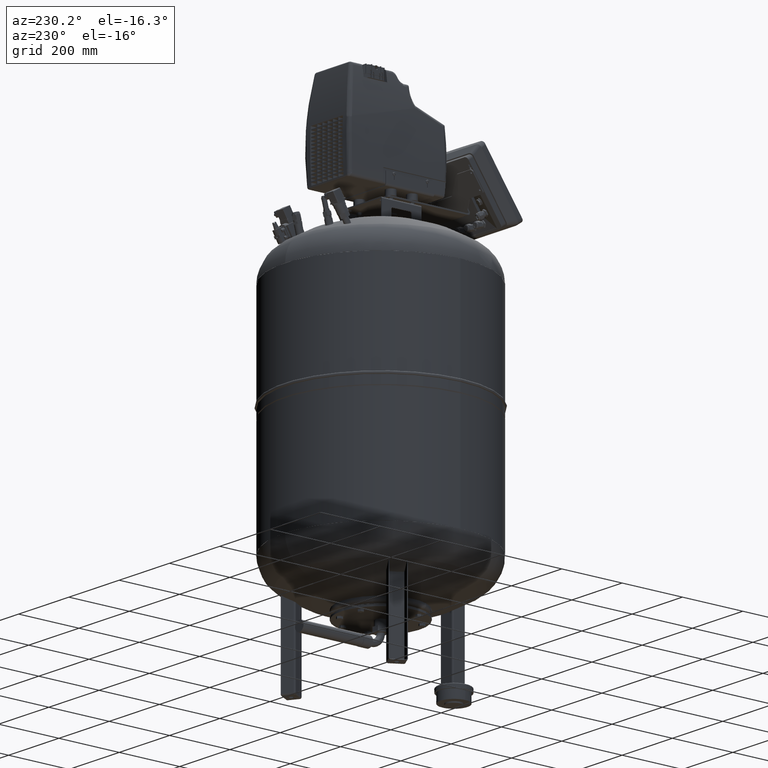
[diagram: clean part render]
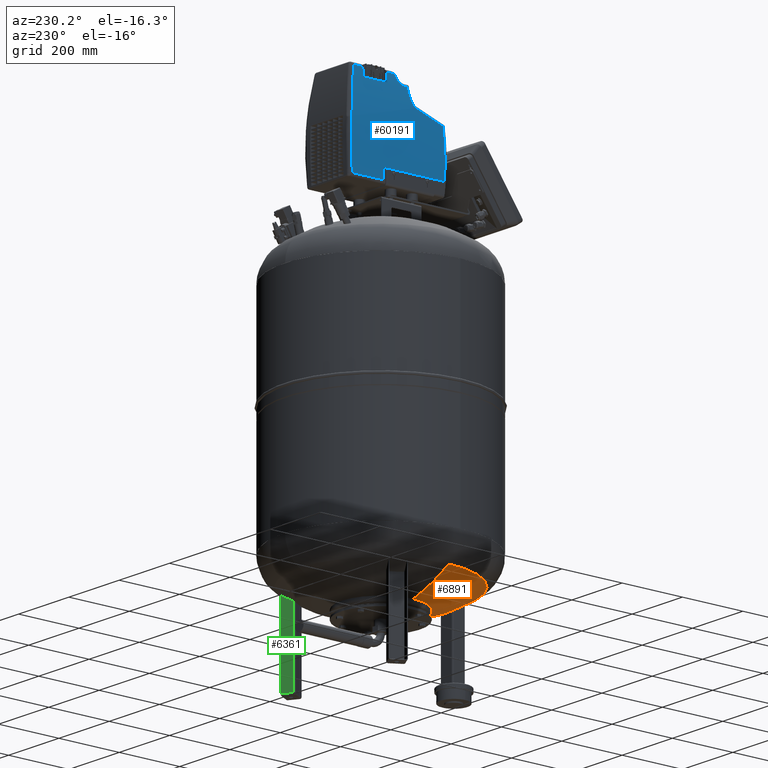
[diagram: same view with three faces highlighted in distinct colors, each labeled with its STEP entity id]
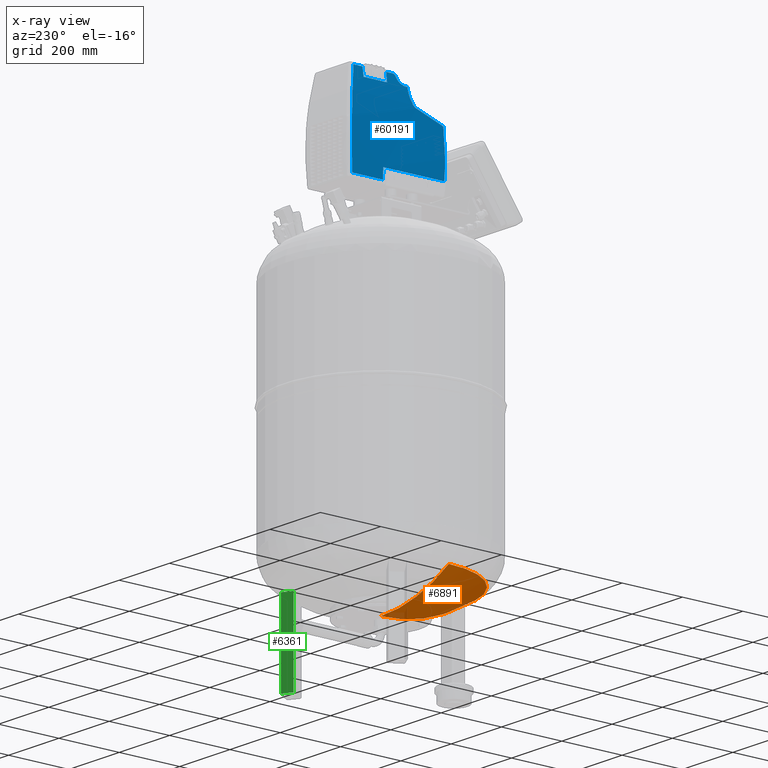
[diagram: x-ray of the same camera — body ghosted, the three highlighted faces saturated]
A machine part, auxiliary view with three faces highlighted in distinct colors.
The next image is the same camera in x-ray (body ghosted, the three faces saturated) — at least one of them is partly hidden behind the body in this view.
Their STEP definitions:

[orange] entity #6891 — the highlighted spherical surface has radius 509 mm.
#6814=AXIS2_PLACEMENT_3D('Circle Axis2P3D',#6812,#6813,$) ;
#6833=AXIS2_PLACEMENT_3D('Circle Axis2P3D',#6831,#6832,$) ;
#6872=AXIS2_PLACEMENT_3D('Circle Axis2P3D',#6870,#6871,$) ;
#6884=AXIS2_PLACEMENT_3D('Sphere Axis2P3D',#6881,#6882,#6883) ;
#6769=CARTESIAN_POINT('Vertex',(-5.8221616869E-014,-270.63902439,268.913560319)) ;
#6809=CARTESIAN_POINT('Vertex',(-270.63902439,2.75778831515E-013,268.913560319)) ;
#6812=CARTESIAN_POINT('Axis2P3D Location',(8.06582611976E-015,-1.43124917185E-014,268.913560319)) ;
#6831=CARTESIAN_POINT('Axis2P3D Location',(-1.005746E-013,-9.350178E-014,700.)) ;
#6835=CARTESIAN_POINT('Vertex',(-1.87211571315E-014,-9.350178E-014,191.)) ;
#6870=CARTESIAN_POINT('Axis2P3D Location',(-1.005746E-013,-9.350178E-014,700.)) ;
#6881=CARTESIAN_POINT('Axis2P3D Location',(-1.005746E-013,-9.350178E-014,700.)) ;
#6813=DIRECTION('Axis2P3D Direction',(-9.619823E-017,0.,1.)) ;
#6832=DIRECTION('Axis2P3D Direction',(-1.,1.83697019872E-016,0.)) ;
#6871=DIRECTION('Axis2P3D Direction',(1.22464679915E-016,1.,-0.)) ;
#6882=DIRECTION('Axis2P3D Direction',(0.,0.,1.)) ;
#6883=DIRECTION('Axis2P3D XDirection',(-1.,1.22464679915E-016,0.)) ;
#6887=ORIENTED_EDGE('',*,*,#6837,.T.) ;
#6888=ORIENTED_EDGE('',*,*,#6816,.F.) ;
#6889=ORIENTED_EDGE('',*,*,#6874,.T.) ;
#6891=ADVANCED_FACE('312',(#6890),#6885,.T.) ;
#6815=CIRCLE('generated circle',#6814,270.63902439) ;
#6834=CIRCLE('generated circle',#6833,509.) ;
#6873=CIRCLE('generated circle',#6872,509.) ;
#6816=EDGE_CURVE('',#6810,#6770,#6815,.T.) ;
#6837=EDGE_CURVE('',#6836,#6770,#6834,.T.) ;
#6874=EDGE_CURVE('',#6810,#6836,#6873,.F.) ;
#6886=EDGE_LOOP('',(#6887,#6888,#6889)) ;
#6890=FACE_OUTER_BOUND('',#6886,.T.) ;
#6885=SPHERICAL_SURFACE('',#6884,509.) ;
#6770=VERTEX_POINT('',#6769) ;
#6810=VERTEX_POINT('',#6809) ;
#6836=VERTEX_POINT('',#6835) ;

[blue] entity #60191 — the highlighted cylindrical surface (partial cylindrical patch) has radius 1323.98 mm, axis along (-0, -1, 0).
#60025=AXIS2_PLACEMENT_3D('Cylinder Axis2P3D',#60022,#60023,#60024) ;
#60029=AXIS2_PLACEMENT_3D('Circle Axis2P3D',#60027,#60028,$) ;
#60106=AXIS2_PLACEMENT_3D('Circle Axis2P3D',#60104,#60105,$) ;
#60134=AXIS2_PLACEMENT_3D('Circle Axis2P3D',#60132,#60133,$) ;
#52963=CARTESIAN_POINT('Vertex',(-87.3076272385,167.562096216,1326.44668033)) ;
#53012=CARTESIAN_POINT('Vertex',(-86.6911594313,166.839786112,1317.29356935)) ;
#53016=CARTESIAN_POINT('Control Point',(-86.6911890346,166.840084881,1317.29354245)) ;
#53017=CARTESIAN_POINT('Control Point',(-86.9071158889,167.093227253,1320.34206636)) ;
#53018=CARTESIAN_POINT('Control Point',(-87.1126187467,167.333988082,1323.39310722)) ;
#53019=CARTESIAN_POINT('Control Point',(-87.3076655401,167.562339536,1326.44665968)) ;
#53077=CARTESIAN_POINT('Vertex',(-88.9059773766,169.329224737,1464.65086395)) ;
#53081=CARTESIAN_POINT('Control Point',(-87.3076655401,167.562339536,1326.44665968)) ;
#53082=CARTESIAN_POINT('Control Point',(-89.0613200686,169.615434363,1353.90097471)) ;
#53083=CARTESIAN_POINT('Control Point',(-90.1165547567,170.83495077,1386.23843005)) ;
#53084=CARTESIAN_POINT('Control Point',(-89.9860810098,170.650862774,1418.53255406)) ;
#53085=CARTESIAN_POINT('Control Point',(-89.9419752957,170.59432104,1423.23804874)) ;
#53086=CARTESIAN_POINT('Vertex',(-89.9419391292,170.594282238,1423.23804793)) ;
#53090=CARTESIAN_POINT('Control Point',(-89.9419752957,170.59432104,1423.23804874)) ;
#53091=CARTESIAN_POINT('Control Point',(-89.8123777147,170.428182205,1437.06439166)) ;
#53092=CARTESIAN_POINT('Control Point',(-89.4661772663,170.005542452,1450.87565199)) ;
#53093=CARTESIAN_POINT('Control Point',(-88.9060228084,169.329263426,1464.6508677)) ;
#53148=CARTESIAN_POINT('Vertex',(-75.4672556537,153.241497499,1606.46839054)) ;
#53152=CARTESIAN_POINT('Control Point',(-88.9060228084,169.329263426,1464.6508677)) ;
#53153=CARTESIAN_POINT('Control Point',(-88.8232989608,169.229390253,1466.68519739)) ;
#53154=CARTESIAN_POINT('Control Point',(-88.7358614937,169.12393097,1468.71944374)) ;
#53155=CARTESIAN_POINT('Control Point',(-88.6437187438,169.012893137,1470.75353245)) ;
#53156=CARTESIAN_POINT('Vertex',(-88.6436327259,169.012806686,1470.75352383)) ;
#53160=CARTESIAN_POINT('Control Point',(-88.6437187438,169.012893137,1470.75353245)) ;
#53161=CARTESIAN_POINT('Control Point',(-87.6487032733,167.813836654,1492.71890402)) ;
#53162=CARTESIAN_POINT('Control Point',(-84.444297555,163.974501095,1538.27635721)) ;
#53163=CARTESIAN_POINT('Control Point',(-78.9208834126,157.373153528,1583.35153129)) ;
#53164=CARTESIAN_POINT('Control Point',(-75.4672530176,153.241606009,1606.46840954)) ;
#53205=CARTESIAN_POINT('Control Point',(-75.4672530176,153.241606009,1606.46840954)) ;
#53206=CARTESIAN_POINT('Control Point',(-75.316183945,153.060883413,1607.47959052)) ;
#53207=CARTESIAN_POINT('Control Point',(-75.1639928693,152.87881243,1608.49026462)) ;
#53208=CARTESIAN_POINT('Control Point',(-75.0106825707,152.695395622,1609.50042948)) ;
#53209=CARTESIAN_POINT('Vertex',(-75.0106742755,152.695384031,1609.50048874)) ;
#54957=CARTESIAN_POINT('Vertex',(-75.0444309469,21.294597543,1609.27793703)) ;
#54975=CARTESIAN_POINT('Vertex',(-75.0106742755,23.3788220938,1609.50048874)) ;
#54979=CARTESIAN_POINT('Control Point',(-75.0106742755,23.3788220946,1609.50048874)) ;
#54980=CARTESIAN_POINT('Control Point',(-75.0106823751,22.6799499283,1609.50043442)) ;
#54981=CARTESIAN_POINT('Control Point',(-75.0219886121,21.9778088679,1609.42598105)) ;
#54982=CARTESIAN_POINT('Control Point',(-75.044251522,21.29433767,1609.27911974)) ;
#55043=CARTESIAN_POINT('Control Point',(-75.044251522,21.29433767,1609.27911974)) ;
#55044=CARTESIAN_POINT('Control Point',(-75.0671547127,20.5912098531,1609.1280347)) ;
#55045=CARTESIAN_POINT('Control Point',(-75.1016040874,19.9047879948,1608.90066577)) ;
#55046=CARTESIAN_POINT('Control Point',(-75.1468631143,19.2489450234,1608.60105399)) ;
#55047=CARTESIAN_POINT('Vertex',(-75.1468614273,19.2489408236,1608.60106293)) ;
#55051=CARTESIAN_POINT('Control Point',(-75.146863116,19.2489449982,1608.60105398)) ;
#55052=CARTESIAN_POINT('Control Point',(-75.1518826794,19.1762071255,1608.5678248)) ;
#55053=CARTESIAN_POINT('Control Point',(-75.1892917227,18.6508370805,1608.32011834)) ;
#55054=CARTESIAN_POINT('Control Point',(-75.2527837963,17.9287655862,1607.89899733)) ;
#55055=CARTESIAN_POINT('Control Point',(-75.3570026275,16.9995638127,1607.20528146)) ;
#55056=CARTESIAN_POINT('Control Point',(-75.4229187638,16.5171978025,1606.7651441)) ;
#55057=CARTESIAN_POINT('Control Point',(-75.4656326546,16.2389565734,1606.47925314)) ;
#55058=CARTESIAN_POINT('Vertex',(-75.4656346261,16.2389697695,1606.47924058)) ;
#55116=CARTESIAN_POINT('Control Point',(-75.4656326546,16.2389565734,1606.47925314)) ;
#55117=CARTESIAN_POINT('Control Point',(-75.4709687977,16.2041965693,1606.44353748)) ;
#55118=CARTESIAN_POINT('Control Point',(-75.4763449167,16.1696868456,1606.40754425)) ;
#55119=CARTESIAN_POINT('Control Point',(-75.4817601872,16.1354323112,1606.37127853)) ;
#55120=CARTESIAN_POINT('Vertex',(-75.4817576078,16.1354123019,1606.37129704)) ;
#55124=CARTESIAN_POINT('Control Point',(-75.4817601985,16.1354322394,1606.37127845)) ;
#55125=CARTESIAN_POINT('Control Point',(-75.5457005674,15.7309745976,1605.94307389)) ;
#55126=CARTESIAN_POINT('Control Point',(-75.6986088105,14.9182090625,1604.91589467)) ;
#55127=CARTESIAN_POINT('Control Point',(-75.8714270679,14.3173882002,1603.74483328)) ;
#55128=CARTESIAN_POINT('Control Point',(-75.9681420673,14.062405185,1603.08582143)) ;
#55129=CARTESIAN_POINT('Vertex',(-75.9681420673,14.0624051858,1603.08582143)) ;
#55187=CARTESIAN_POINT('Vertex',(-76.8837424774,10.8108161555,1596.74012063)) ;
#55191=CARTESIAN_POINT('Control Point',(-75.9681420673,14.062405185,1603.08582143)) ;
#55192=CARTESIAN_POINT('Control Point',(-76.2932499527,13.2049041147,1600.87057556)) ;
#55193=CARTESIAN_POINT('Control Point',(-76.6005884204,12.1095802017,1598.73674547)) ;
#55194=CARTESIAN_POINT('Control Point',(-76.8837421427,10.8108221145,1596.74011671)) ;
#55233=CARTESIAN_POINT('Control Point',(-76.8837421427,10.8108221145,1596.74011671)) ;
#55234=CARTESIAN_POINT('Control Point',(-77.1385833257,9.64192684248,1594.94313084)) ;
#55235=CARTESIAN_POINT('Control Point',(-77.3746650101,8.30493706807,1593.25151563)) ;
#55236=CARTESIAN_POINT('Control Point',(-77.588262133,6.8217273673,1591.70264933)) ;
#55237=CARTESIAN_POINT('Vertex',(-77.5882674575,6.82172730641,1591.70265012)) ;
#55241=CARTESIAN_POINT('Control Point',(-77.588262133,6.8217273673,1591.70264933)) ;
#55242=CARTESIAN_POINT('Control Point',(-77.6187613907,6.60981980241,1591.48148871)) ;
#55243=CARTESIAN_POINT('Control Point',(-77.6488101718,6.3949552172,1591.26318129)) ;
#55244=CARTESIAN_POINT('Control Point',(-77.6783983485,6.17721286599,1591.0478303)) ;
#55245=CARTESIAN_POINT('Vertex',(-77.6784070266,6.17726570554,1591.04777806)) ;
#55249=CARTESIAN_POINT('Control Point',(-77.6783983485,6.17721286603,1591.0478303)) ;
#55250=CARTESIAN_POINT('Control Point',(-77.7046950454,5.98369284387,1590.85643561)) ;
#55251=CARTESIAN_POINT('Control Point',(-77.730627916,5.78789970638,1590.66737618)) ;
#55252=CARTESIAN_POINT('Control Point',(-77.7561898505,5.58988909162,1590.48072447)) ;
#55253=CARTESIAN_POINT('Vertex',(-77.7561594523,5.58967697799,1590.48094566)) ;
#55319=CARTESIAN_POINT('Control Point',(-77.7561594697,5.58967770549,1590.48094628)) ;
#55320=CARTESIAN_POINT('Control Point',(-77.8740041494,4.67549508491,1589.6204524)) ;
#55321=CARTESIAN_POINT('Control Point',(-77.9857108574,3.71728095989,1588.79949897)) ;
#55322=CARTESIAN_POINT('Control Point',(-78.0787067155,2.82328308376,1588.11154545)) ;
#55323=CARTESIAN_POINT('Control Point',(-78.2327449054,1.24032982113,1586.96809696)) ;
#55324=CARTESIAN_POINT('Control Point',(-78.3745407647,-0.475302229711,1585.90719065)) ;
#55325=CARTESIAN_POINT('Control Point',(-78.4377947104,-1.29462539923,1585.43245093)) ;
#55326=CARTESIAN_POINT('Control Point',(-78.5158153785,-2.41274208877,1584.84458256)) ;
#55327=CARTESIAN_POINT('Control Point',(-78.5862891366,-3.55279331935,1584.31158226)) ;
#55328=CARTESIAN_POINT('Control Point',(-78.5997504646,-3.77604010948,1584.20969548)) ;
#55329=CARTESIAN_POINT('Control Point',(-78.6129202472,-4.00005394172,1584.10994316)) ;
#55330=CARTESIAN_POINT('Control Point',(-78.6257963906,-4.22480040042,1584.01234797)) ;
#55331=CARTESIAN_POINT('Vertex',(-78.6257957139,-4.22480040535,1584.01234789)) ;
#55387=CARTESIAN_POINT('Control Point',(-78.6257963906,-4.22480040042,1584.01234797)) ;
#55388=CARTESIAN_POINT('Control Point',(-78.6291315459,-4.28301381937,1583.98706904)) ;
#55389=CARTESIAN_POINT('Control Point',(-78.6324436119,-4.34129576525,1583.96195963)) ;
#55390=CARTESIAN_POINT('Control Point',(-78.6357324883,-4.39964515909,1583.93702071)) ;
#55391=CARTESIAN_POINT('Vertex',(-78.635731531,-4.39964516032,1583.93702058)) ;
#55395=CARTESIAN_POINT('Control Point',(-78.6357324883,-4.39964515909,1583.93702071)) ;
#55396=CARTESIAN_POINT('Control Point',(-78.6412657515,-4.49791837751,1583.89506302)) ;
#55397=CARTESIAN_POINT('Control Point',(-78.646737029,-4.59641287984,1583.85356019)) ;
#55398=CARTESIAN_POINT('Control Point',(-78.6521461201,-4.69512376609,1583.81251459)) ;
#55399=CARTESIAN_POINT('Vertex',(-78.6521539078,-4.69509355724,1583.81244297)) ;
#55403=CARTESIAN_POINT('Control Point',(-78.6521461201,-4.69512376609,1583.81251459)) ;
#55404=CARTESIAN_POINT('Control Point',(-78.7539306728,-6.55259728458,1583.0401468)) ;
#55405=CARTESIAN_POINT('Control Point',(-78.9296804409,-10.8140772364,1581.69508314)) ;
#55406=CARTESIAN_POINT('Control Point',(-78.9920362559,-15.2890245446,1581.21331666)) ;
#55407=CARTESIAN_POINT('Control Point',(-78.9919677211,-17.703577953,1581.2138705)) ;
#55408=CARTESIAN_POINT('Vertex',(-78.9919677211,-17.7035779525,1581.2138705)) ;
#55731=CARTESIAN_POINT('Vertex',(-87.2950691375,-134.575088929,1495.42746206)) ;
#55765=CARTESIAN_POINT('Vertex',(-84.8581533226,-47.366049055,1527.41056861)) ;
#55769=CARTESIAN_POINT('Control Point',(-84.8581533226,-47.3660490547,1527.41056861)) ;
#55770=CARTESIAN_POINT('Control Point',(-85.799570416,-76.4074792163,1516.75990816)) ;
#55771=CARTESIAN_POINT('Control Point',(-86.6119426256,-105.480009848,1506.09784192)) ;
#55772=CARTESIAN_POINT('Control Point',(-87.2950639291,-134.575103324,1495.42750097)) ;
#55835=CARTESIAN_POINT('Vertex',(-89.7231436386,-138.040816136,1383.76439616)) ;
#55875=CARTESIAN_POINT('Control Point',(-87.2950401,-134.575125012,1495.42746313)) ;
#55876=CARTESIAN_POINT('Control Point',(-88.2228196059,-135.751764207,1480.93429663)) ;
#55877=CARTESIAN_POINT('Control Point',(-89.3281814431,-137.184064543,1457.68350646)) ;
#55878=CARTESIAN_POINT('Control Point',(-89.9364475172,-138.056382938,1428.83148848)) ;
#55879=CARTESIAN_POINT('Control Point',(-90.0064751009,-138.214474795,1414.54963866)) ;
#55880=CARTESIAN_POINT('Control Point',(-89.998747293,-138.234550935,1408.99553636)) ;
#55881=CARTESIAN_POINT('Vertex',(-89.9987167813,-138.234511614,1408.99553626)) ;
#55885=CARTESIAN_POINT('Control Point',(-89.998747293,-138.234550935,1408.99553636)) ;
#55886=CARTESIAN_POINT('Control Point',(-89.9870457994,-138.264950347,1400.5854808)) ;
#55887=CARTESIAN_POINT('Control Point',(-89.8951843711,-138.200415046,1392.17555796)) ;
#55888=CARTESIAN_POINT('Control Point',(-89.7231450928,-138.040960085,1383.7643934)) ;
#55933=CARTESIAN_POINT('Control Point',(-89.7231450928,-138.040960085,1383.7643934)) ;
#55934=CARTESIAN_POINT('Control Point',(-89.4928377836,-137.82749928,1372.50444919)) ;
#55935=CARTESIAN_POINT('Control Point',(-89.1184592134,-137.443482091,1361.24521962)) ;
#55936=CARTESIAN_POINT('Control Point',(-88.6011825026,-136.890058663,1350.00002534)) ;
#55937=CARTESIAN_POINT('Vertex',(-88.6014415449,-136.890331376,1350.)) ;
#60022=CARTESIAN_POINT('Axis2P3D Location',(1233.97935138,16.,1410.83887792)) ;
#60027=CARTESIAN_POINT('Axis2P3D Location',(1233.97935138,64.9949999992,1410.83887792)) ;
#60031=CARTESIAN_POINT('Vertex',(-86.6911511569,64.9949999992,1317.29345254)) ;
#60033=CARTESIAN_POINT('Vertex',(-88.6014415449,64.995,1350.)) ;
#60036=CARTESIAN_POINT('Line Origine',(-88.6014415452,16.,1350.)) ;
#60042=CARTESIAN_POINT('Control Point',(-84.2019426608,-37.9486657456,1534.61043734)) ;
#60043=CARTESIAN_POINT('Control Point',(-84.3857842,-39.3409998138,1532.65250387)) ;
#60044=CARTESIAN_POINT('Control Point',(-84.5468810328,-41.0302684663,1530.89766568)) ;
#60045=CARTESIAN_POINT('Control Point',(-84.6803878136,-42.9611911049,1529.41427138)) ;
#60046=CARTESIAN_POINT('Control Point',(-84.7850148969,-45.109702824,1528.2380225)) ;
#60047=CARTESIAN_POINT('Control Point',(-84.8581533226,-47.366049055,1527.41056861)) ;
#60048=CARTESIAN_POINT('Vertex',(-84.2019426608,-37.9486657456,1534.61043734)) ;
#60052=CARTESIAN_POINT('Control Point',(-82.839798786,-30.0724686347,1548.34759995)) ;
#60053=CARTESIAN_POINT('Control Point',(-83.343681435,-32.2458394746,1543.52228915)) ;
#60054=CARTESIAN_POINT('Control Point',(-83.7984817618,-34.8932761467,1538.90734215)) ;
#60055=CARTESIAN_POINT('Control Point',(-84.2019426608,-37.9486657456,1534.61043734)) ;
#60056=CARTESIAN_POINT('Vertex',(-82.839798786,-30.0724686347,1548.34759995)) ;
#60060=CARTESIAN_POINT('Control Point',(-82.5980730776,-29.0804766526,1550.64305628)) ;
#60061=CARTESIAN_POINT('Control Point',(-82.6798093231,-29.3992442315,1549.87332181)) ;
#60062=CARTESIAN_POINT('Control Point',(-82.7603866472,-29.7299443839,1549.10807117)) ;
#60063=CARTESIAN_POINT('Control Point',(-82.839798786,-30.0724686347,1548.34759995)) ;
#60064=CARTESIAN_POINT('Vertex',(-82.5980730776,-29.0804766526,1550.64305628)) ;
#60068=CARTESIAN_POINT('Control Point',(-80.0712836986,-23.3899473399,1572.67908099)) ;
#60069=CARTESIAN_POINT('Control Point',(-80.7700405902,-24.0341591917,1567.00557144)) ;
#60070=CARTESIAN_POINT('Control Point',(-81.4270136463,-25.2028647256,1561.40198971)) ;
#60071=CARTESIAN_POINT('Control Point',(-82.0368250287,-26.8916352089,1555.92849567)) ;
#60072=CARTESIAN_POINT('Control Point',(-82.5980730776,-29.0804766526,1550.64305628)) ;
#60073=CARTESIAN_POINT('Vertex',(-80.0712836986,-23.3899473399,1572.67908099)) ;
#60077=CARTESIAN_POINT('Control Point',(-79.5158611725,-23.0086732994,1577.12672919)) ;
#60078=CARTESIAN_POINT('Control Point',(-79.7038943596,-23.0949768068,1575.64146921)) ;
#60079=CARTESIAN_POINT('Control Point',(-79.8891205298,-23.2220038481,1574.15814257)) ;
#60080=CARTESIAN_POINT('Control Point',(-80.0712836986,-23.3899473399,1572.67908099)) ;
#60081=CARTESIAN_POINT('Vertex',(-79.5158611725,-23.0086732994,1577.12672919)) ;
#60085=CARTESIAN_POINT('Control Point',(-78.9940292867,-22.873994302,1581.19798258)) ;
#60086=CARTESIAN_POINT('Control Point',(-79.1701223073,-22.8850268673,1579.84081738)) ;
#60087=CARTESIAN_POINT('Control Point',(-79.3441345052,-22.9298541616,1578.4831852)) ;
#60088=CARTESIAN_POINT('Control Point',(-79.5158611725,-23.0086732994,1577.12672919)) ;
#60089=CARTESIAN_POINT('Vertex',(-78.9940292867,-22.873994302,1581.19798258)) ;
#60092=CARTESIAN_POINT('Line Origine',(-78.9919677211,16.,1581.2138705)) ;
#60097=CARTESIAN_POINT('Line Origine',(-75.0106742755,16.,1609.50048874)) ;
#60101=CARTESIAN_POINT('Vertex',(-75.0106742755,44.6953840312,1609.50048874)) ;
#60104=CARTESIAN_POINT('Axis2P3D Location',(1233.97935138,44.6953840312,1410.83887792)) ;
#60108=CARTESIAN_POINT('Vertex',(-79.0197024703,44.6953840312,1581.)) ;
#60111=CARTESIAN_POINT('Line Origine',(-79.0197024703,16.,1581.)) ;
#60115=CARTESIAN_POINT('Vertex',(-79.0197024703,53.0447463207,1581.)) ;
#60118=CARTESIAN_POINT('Line Origine',(-79.0197024703,16.,1581.)) ;
#60122=CARTESIAN_POINT('Vertex',(-79.0197024703,113.63083775,1581.)) ;
#60125=CARTESIAN_POINT('Line Origine',(-79.0197024703,16.,1581.)) ;
#60129=CARTESIAN_POINT('Vertex',(-79.0197024703,122.695384031,1581.)) ;
#60132=CARTESIAN_POINT('Axis2P3D Location',(1233.97935138,122.695384031,1410.83887792)) ;
#60136=CARTESIAN_POINT('Vertex',(-75.0106742755,122.695384031,1609.50048874)) ;
#60139=CARTESIAN_POINT('Line Origine',(-75.0106742755,16.,1609.50048874)) ;
#60144=CARTESIAN_POINT('Line Origine',(-86.6911511569,16.,1317.29345254)) ;
#60023=DIRECTION('Axis2P3D Direction',(-1.83697006462E-016,-1.,1.02365195535E-024)) ;
#60024=DIRECTION('Axis2P3D XDirection',(-0.987682942333,1.814344E-016,0.15646854452)) ;
#60028=DIRECTION('Axis2P3D Direction',(-1.83697006462E-016,-1.,1.02365195535E-024)) ;
#60037=DIRECTION('Vector Direction',(-1.83695192391E-016,-1.,0.)) ;
#60093=DIRECTION('Vector Direction',(-1.83695192391E-016,-1.,0.)) ;
#60098=DIRECTION('Vector Direction',(-1.83695192391E-016,-1.,0.)) ;
#60105=DIRECTION('Axis2P3D Direction',(-1.83697006462E-016,-1.,1.02365195535E-024)) ;
#60112=DIRECTION('Vector Direction',(-1.83695192391E-016,-1.,0.)) ;
#60119=DIRECTION('Vector Direction',(-1.83695192391E-016,-1.,0.)) ;
#60126=DIRECTION('Vector Direction',(-1.83695192391E-016,-1.,0.)) ;
#60133=DIRECTION('Axis2P3D Direction',(-1.83697006462E-016,-1.,1.02365195535E-024)) ;
#60140=DIRECTION('Vector Direction',(-1.83695192391E-016,-1.,0.)) ;
#60145=DIRECTION('Vector Direction',(-1.83695192391E-016,-1.,0.)) ;
#60038=VECTOR('Line Direction',#60037,1.) ;
#60094=VECTOR('Line Direction',#60093,1.) ;
#60099=VECTOR('Line Direction',#60098,1.) ;
#60113=VECTOR('Line Direction',#60112,1.) ;
#60120=VECTOR('Line Direction',#60119,1.) ;
#60127=VECTOR('Line Direction',#60126,1.) ;
#60141=VECTOR('Line Direction',#60140,1.) ;
#60146=VECTOR('Line Direction',#60145,1.) ;
#60150=ORIENTED_EDGE('',*,*,#60035,.T.) ;
#60151=ORIENTED_EDGE('',*,*,#60040,.T.) ;
#60152=ORIENTED_EDGE('',*,*,#55939,.F.) ;
#60153=ORIENTED_EDGE('',*,*,#55889,.F.) ;
#60154=ORIENTED_EDGE('',*,*,#55883,.F.) ;
#60155=ORIENTED_EDGE('',*,*,#55773,.F.) ;
#60156=ORIENTED_EDGE('',*,*,#60050,.F.) ;
#60157=ORIENTED_EDGE('',*,*,#60058,.F.) ;
#60158=ORIENTED_EDGE('',*,*,#60066,.F.) ;
#60159=ORIENTED_EDGE('',*,*,#60075,.F.) ;
#60160=ORIENTED_EDGE('',*,*,#60083,.F.) ;
#60161=ORIENTED_EDGE('',*,*,#60091,.F.) ;
#60162=ORIENTED_EDGE('',*,*,#60096,.F.) ;
#60163=ORIENTED_EDGE('',*,*,#55410,.F.) ;
#60164=ORIENTED_EDGE('',*,*,#55401,.F.) ;
#60165=ORIENTED_EDGE('',*,*,#55393,.F.) ;
#60166=ORIENTED_EDGE('',*,*,#55333,.F.) ;
#60167=ORIENTED_EDGE('',*,*,#55255,.F.) ;
#60168=ORIENTED_EDGE('',*,*,#55247,.F.) ;
#60169=ORIENTED_EDGE('',*,*,#55239,.F.) ;
#60170=ORIENTED_EDGE('',*,*,#55195,.F.) ;
#60171=ORIENTED_EDGE('',*,*,#55131,.F.) ;
#60172=ORIENTED_EDGE('',*,*,#55122,.F.) ;
#60173=ORIENTED_EDGE('',*,*,#55060,.F.) ;
#60174=ORIENTED_EDGE('',*,*,#55049,.F.) ;
#60175=ORIENTED_EDGE('',*,*,#54983,.F.) ;
#60176=ORIENTED_EDGE('',*,*,#60103,.F.) ;
#60177=ORIENTED_EDGE('',*,*,#60110,.T.) ;
#60178=ORIENTED_EDGE('',*,*,#60117,.T.) ;
#60179=ORIENTED_EDGE('',*,*,#60124,.T.) ;
#60180=ORIENTED_EDGE('',*,*,#60131,.T.) ;
#60181=ORIENTED_EDGE('',*,*,#60138,.T.) ;
#60182=ORIENTED_EDGE('',*,*,#60143,.F.) ;
#60183=ORIENTED_EDGE('',*,*,#53211,.F.) ;
#60184=ORIENTED_EDGE('',*,*,#53165,.F.) ;
#60185=ORIENTED_EDGE('',*,*,#53158,.F.) ;
#60186=ORIENTED_EDGE('',*,*,#53094,.F.) ;
#60187=ORIENTED_EDGE('',*,*,#53088,.F.) ;
#60188=ORIENTED_EDGE('',*,*,#53020,.F.) ;
#60189=ORIENTED_EDGE('',*,*,#60148,.F.) ;
#60191=ADVANCED_FACE('2FC',(#60190),#60026,.T.) ;
#53015=B_SPLINE_CURVE_WITH_KNOTS('',3,(#53016,#53017,#53018,#53019),.UNSPECIFIED.,.F.,.U.,(4,4),(71.2743184714,80.499431652),.UNSPECIFIED.) ;
#53080=B_SPLINE_CURVE_WITH_KNOTS('',3,(#53081,#53082,#53083,#53084,#53085),.UNSPECIFIED.,.F.,.U.,(4,1,4),(80.499431652,163.44189494,177.594643623),.UNSPECIFIED.) ;
#53089=B_SPLINE_CURVE_WITH_KNOTS('',3,(#53090,#53091,#53092,#53093),.UNSPECIFIED.,.F.,.U.,(4,4),(177.594643623,219.180230195),.UNSPECIFIED.) ;
#53151=B_SPLINE_CURVE_WITH_KNOTS('',3,(#53152,#53153,#53154,#53155),.UNSPECIFIED.,.F.,.U.,(4,4),(219.180230195,225.321607233),.UNSPECIFIED.) ;
#53159=B_SPLINE_CURVE_WITH_KNOTS('',3,(#53160,#53161,#53162,#53163,#53164),.UNSPECIFIED.,.F.,.U.,(4,1,4),(225.321607233,291.640066027,362.985135153),.UNSPECIFIED.) ;
#53204=B_SPLINE_CURVE_WITH_KNOTS('',3,(#53205,#53206,#53207,#53208),.UNSPECIFIED.,.F.,.U.,(4,4),(362.985135153,366.105918848),.UNSPECIFIED.) ;
#54978=B_SPLINE_CURVE_WITH_KNOTS('',3,(#54979,#54980,#54981,#54982),.UNSPECIFIED.,.F.,.U.,(4,4),(0.,3.33228954722),.UNSPECIFIED.) ;
#55042=B_SPLINE_CURVE_WITH_KNOTS('',3,(#55043,#55044,#55045,#55046),.UNSPECIFIED.,.F.,.U.,(4,4),(3.33228954722,6.76041568028),.UNSPECIFIED.) ;
#55050=B_SPLINE_CURVE_WITH_KNOTS('',3,(#55051,#55052,#55053,#55054,#55055,#55056,#55057),.UNSPECIFIED.,.F.,.U.,(4,1,1,1,4),(6.76041572414,7.14062045833,9.52082727778,10.7109306875,12.6150961431),.UNSPECIFIED.) ;
#55115=B_SPLINE_CURVE_WITH_KNOTS('',3,(#55116,#55117,#55118,#55119),.UNSPECIFIED.,.F.,.U.,(4,4),(12.6150961431,12.85297893),.UNSPECIFIED.) ;
#55123=B_SPLINE_CURVE_WITH_KNOTS('',3,(#55124,#55125,#55126,#55127,#55128),.UNSPECIFIED.,.F.,.U.,(4,1,4),(12.8529790961,15.6617608719,19.0416545556),.UNSPECIFIED.) ;
#55190=B_SPLINE_CURVE_WITH_KNOTS('',3,(#55191,#55192,#55193,#55194),.UNSPECIFIED.,.F.,.U.,(4,4),(0.,9.38826981422),.UNSPECIFIED.) ;
#55232=B_SPLINE_CURVE_WITH_KNOTS('',3,(#55233,#55234,#55235,#55236),.UNSPECIFIED.,.F.,.U.,(4,4),(0.,8.44953676203),.UNSPECIFIED.) ;
#55240=B_SPLINE_CURVE_WITH_KNOTS('',3,(#55241,#55242,#55243,#55244),.UNSPECIFIED.,.F.,.U.,(4,4),(11.366041676,12.1343134145),.UNSPECIFIED.) ;
#55248=B_SPLINE_CURVE_WITH_KNOTS('',3,(#55249,#55250,#55251,#55252),.UNSPECIFIED.,.F.,.U.,(4,4),(12.1343134145,12.8171202412),.UNSPECIFIED.) ;
#55318=B_SPLINE_CURVE_WITH_KNOTS('',5,(#55319,#55320,#55321,#55322,#55323,#55324,#55325,#55326,#55327,#55328,#55329,#55330),.UNSPECIFIED.,.F.,.U.,(6,3,3,6),(0.,8.23766746813,14.8680100654,16.4753349363),.UNSPECIFIED.) ;
#55386=B_SPLINE_CURVE_WITH_KNOTS('',3,(#55387,#55388,#55389,#55390),.UNSPECIFIED.,.F.,.U.,(4,4),(0.,0.249795818756),.UNSPECIFIED.) ;
#55394=B_SPLINE_CURVE_WITH_KNOTS('',3,(#55395,#55396,#55397,#55398),.UNSPECIFIED.,.F.,.U.,(4,4),(22.8027181487,23.070640407),.UNSPECIFIED.) ;
#55402=B_SPLINE_CURVE_WITH_KNOTS('',3,(#55403,#55404,#55405,#55406,#55407),.UNSPECIFIED.,.F.,.U.,(4,1,4),(23.070640407,28.1122170624,34.1789873099),.UNSPECIFIED.) ;
#55768=B_SPLINE_CURVE_WITH_KNOTS('',3,(#55769,#55770,#55771,#55772),.UNSPECIFIED.,.F.,.U.,(4,4),(1.48263571272,94.4247458054),.UNSPECIFIED.) ;
#55874=B_SPLINE_CURVE_WITH_KNOTS('',3,(#55875,#55876,#55877,#55878,#55879,#55880),.UNSPECIFIED.,.F.,.U.,(4,1,1,4),(166.294093011,210.123964927,236.389460543,253.104396162),.UNSPECIFIED.) ;
#55884=B_SPLINE_CURVE_WITH_KNOTS('',3,(#55885,#55886,#55887,#55888),.UNSPECIFIED.,.F.,.U.,(4,4),(253.104396162,278.414253528),.UNSPECIFIED.) ;
#55932=B_SPLINE_CURVE_WITH_KNOTS('',3,(#55933,#55934,#55935,#55936),.UNSPECIFIED.,.F.,.U.,(4,4),(278.414253528,312.296313511),.UNSPECIFIED.) ;
#60041=B_SPLINE_CURVE_WITH_KNOTS('',5,(#60042,#60043,#60044,#60045,#60046,#60047),.UNSPECIFIED.,.F.,.U.,(6,6),(0.,17.054382512),.UNSPECIFIED.) ;
#60051=B_SPLINE_CURVE_WITH_KNOTS('',3,(#60052,#60053,#60054,#60055),.UNSPECIFIED.,.F.,.U.,(4,4),(0.,22.5505617373),.UNSPECIFIED.) ;
#60059=B_SPLINE_CURVE_WITH_KNOTS('',3,(#60060,#60061,#60062,#60063),.UNSPECIFIED.,.F.,.U.,(4,4),(32.5382168849,36.0921958575),.UNSPECIFIED.) ;
#60067=B_SPLINE_CURVE_WITH_KNOTS('',4,(#60068,#60069,#60070,#60071,#60072),.UNSPECIFIED.,.F.,.U.,(5,5),(0.,32.5382168849),.UNSPECIFIED.) ;
#60076=B_SPLINE_CURVE_WITH_KNOTS('',3,(#60077,#60078,#60079,#60080),.UNSPECIFIED.,.F.,.U.,(4,4),(5.81022185377,12.1721605665),.UNSPECIFIED.) ;
#60084=B_SPLINE_CURVE_WITH_KNOTS('',3,(#60085,#60086,#60087,#60088),.UNSPECIFIED.,.F.,.U.,(4,4),(0.,5.81022185377),.UNSPECIFIED.) ;
#60030=CIRCLE('generated circle',#60029,1323.97935138) ;
#60107=CIRCLE('generated circle',#60106,1323.97935138) ;
#60135=CIRCLE('generated circle',#60134,1323.97935138) ;
#60026=CYLINDRICAL_SURFACE('generated cylinder',#60025,1323.97935138) ;
#53020=EDGE_CURVE('',#53013,#52964,#53015,.T.) ;
#53088=EDGE_CURVE('',#52964,#53087,#53080,.T.) ;
#53094=EDGE_CURVE('',#53087,#53078,#53089,.T.) ;
#53158=EDGE_CURVE('',#53078,#53157,#53151,.T.) ;
#53165=EDGE_CURVE('',#53157,#53149,#53159,.T.) ;
#53211=EDGE_CURVE('',#53149,#53210,#53204,.T.) ;
#54983=EDGE_CURVE('',#54976,#54958,#54978,.T.) ;
#55049=EDGE_CURVE('',#54958,#55048,#55042,.T.) ;
#55060=EDGE_CURVE('',#55048,#55059,#55050,.T.) ;
#55122=EDGE_CURVE('',#55059,#55121,#55115,.T.) ;
#55131=EDGE_CURVE('',#55121,#55130,#55123,.T.) ;
#55195=EDGE_CURVE('',#55130,#55188,#55190,.T.) ;
#55239=EDGE_CURVE('',#55188,#55238,#55232,.T.) ;
#55247=EDGE_CURVE('',#55238,#55246,#55240,.T.) ;
#55255=EDGE_CURVE('',#55246,#55254,#55248,.T.) ;
#55333=EDGE_CURVE('',#55254,#55332,#55318,.T.) ;
#55393=EDGE_CURVE('',#55332,#55392,#55386,.T.) ;
#55401=EDGE_CURVE('',#55392,#55400,#55394,.T.) ;
#55410=EDGE_CURVE('',#55400,#55409,#55402,.T.) ;
#55773=EDGE_CURVE('',#55766,#55732,#55768,.T.) ;
#55883=EDGE_CURVE('',#55732,#55882,#55874,.T.) ;
#55889=EDGE_CURVE('',#55882,#55836,#55884,.T.) ;
#55939=EDGE_CURVE('',#55836,#55938,#55932,.T.) ;
#60035=EDGE_CURVE('',#60032,#60034,#60030,.F.) ;
#60040=EDGE_CURVE('',#60034,#55938,#60039,.T.) ;
#60050=EDGE_CURVE('',#60049,#55766,#60041,.T.) ;
#60058=EDGE_CURVE('',#60057,#60049,#60051,.T.) ;
#60066=EDGE_CURVE('',#60065,#60057,#60059,.T.) ;
#60075=EDGE_CURVE('',#60074,#60065,#60067,.T.) ;
#60083=EDGE_CURVE('',#60082,#60074,#60076,.T.) ;
#60091=EDGE_CURVE('',#60090,#60082,#60084,.T.) ;
#60096=EDGE_CURVE('',#55409,#60090,#60095,.T.) ;
#60103=EDGE_CURVE('',#60102,#54976,#60100,.T.) ;
#60110=EDGE_CURVE('',#60102,#60109,#60107,.T.) ;
#60117=EDGE_CURVE('',#60109,#60116,#60114,.F.) ;
#60124=EDGE_CURVE('',#60116,#60123,#60121,.F.) ;
#60131=EDGE_CURVE('',#60123,#60130,#60128,.F.) ;
#60138=EDGE_CURVE('',#60130,#60137,#60135,.F.) ;
#60143=EDGE_CURVE('',#53210,#60137,#60142,.T.) ;
#60148=EDGE_CURVE('',#60032,#53013,#60147,.F.) ;
#60149=EDGE_LOOP('',(#60150,#60151,#60152,#60153,#60154,#60155,#60156,#60157,#60158,#60159,#60160,#60161,#60162,#60163,#60164,#60165,#60166,#60167,#60168,#60169,#60170,#60171,#60172,#60173,#60174,#60175,#60176,#60177,#60178,#60179,#60180,#60181,#60182,#60183,#60184,#60185,#60186,#60187,#60188,#60189)) ;
#60190=FACE_OUTER_BOUND('',#60149,.T.) ;
#60039=LINE('Line',#60036,#60038) ;
#60095=LINE('Line',#60092,#60094) ;
#60100=LINE('Line',#60097,#60099) ;
#60114=LINE('Line',#60111,#60113) ;
#60121=LINE('Line',#60118,#60120) ;
#60128=LINE('Line',#60125,#60127) ;
#60142=LINE('Line',#60139,#60141) ;
#60147=LINE('Line',#60144,#60146) ;
#52964=VERTEX_POINT('',#52963) ;
#53013=VERTEX_POINT('',#53012) ;
#53078=VERTEX_POINT('',#53077) ;
#53087=VERTEX_POINT('',#53086) ;
#53149=VERTEX_POINT('',#53148) ;
#53157=VERTEX_POINT('',#53156) ;
#53210=VERTEX_POINT('',#53209) ;
#54958=VERTEX_POINT('',#54957) ;
#54976=VERTEX_POINT('',#54975) ;
#55048=VERTEX_POINT('',#55047) ;
#55059=VERTEX_POINT('',#55058) ;
#55121=VERTEX_POINT('',#55120) ;
#55130=VERTEX_POINT('',#55129) ;
#55188=VERTEX_POINT('',#55187) ;
#55238=VERTEX_POINT('',#55237) ;
#55246=VERTEX_POINT('',#55245) ;
#55254=VERTEX_POINT('',#55253) ;
#55332=VERTEX_POINT('',#55331) ;
#55392=VERTEX_POINT('',#55391) ;
#55400=VERTEX_POINT('',#55399) ;
#55409=VERTEX_POINT('',#55408) ;
#55732=VERTEX_POINT('',#55731) ;
#55766=VERTEX_POINT('',#55765) ;
#55836=VERTEX_POINT('',#55835) ;
#55882=VERTEX_POINT('',#55881) ;
#55938=VERTEX_POINT('',#55937) ;
#60032=VERTEX_POINT('',#60031) ;
#60034=VERTEX_POINT('',#60033) ;
#60049=VERTEX_POINT('',#60048) ;
#60057=VERTEX_POINT('',#60056) ;
#60065=VERTEX_POINT('',#60064) ;
#60074=VERTEX_POINT('',#60073) ;
#60082=VERTEX_POINT('',#60081) ;
#60090=VERTEX_POINT('',#60089) ;
#60102=VERTEX_POINT('',#60101) ;
#60109=VERTEX_POINT('',#60108) ;
#60116=VERTEX_POINT('',#60115) ;
#60123=VERTEX_POINT('',#60122) ;
#60130=VERTEX_POINT('',#60129) ;
#60137=VERTEX_POINT('',#60136) ;

[green] entity #6361 — the highlighted planar face has unit normal (-0.5, 0.866, 0).
#6348=AXIS2_PLACEMENT_3D('Plane Axis2P3D',#6345,#6346,#6347) ;
#5641=CARTESIAN_POINT('Vertex',(213.96564309,152.400635095,5.)) ;
#5773=CARTESIAN_POINT('Vertex',(184.520779361,135.400635095,5.)) ;
#5798=CARTESIAN_POINT('Line Origine',(188.85090638,137.900635095,5.)) ;
#6133=CARTESIAN_POINT('Line Origine',(213.96564309,152.400635095,0.)) ;
#6137=CARTESIAN_POINT('Vertex',(213.96564309,152.400635095,274.)) ;
#6330=CARTESIAN_POINT('Vertex',(184.520779361,135.400635095,274.)) ;
#6333=CARTESIAN_POINT('Line Origine',(184.520779361,135.400635095,0.)) ;
#6345=CARTESIAN_POINT('Axis2P3D Location',(180.190652342,132.900635095,4.592425E-015)) ;
#6350=CARTESIAN_POINT('Line Origine',(199.243211225,143.900635095,274.)) ;
#5799=DIRECTION('Vector Direction',(0.866025403784,0.5,-5.55111512313E-017)) ;
#6134=DIRECTION('Vector Direction',(9.18475961953E-017,-1.59087676366E-016,1.)) ;
#6334=DIRECTION('Vector Direction',(9.18475961953E-017,-1.59087676366E-016,1.)) ;
#6346=DIRECTION('Axis2P3D Direction',(-0.5,0.866025403784,1.83697E-016)) ;
#6347=DIRECTION('Axis2P3D XDirection',(-0.866025403784,-0.5,-2.039447E-032)) ;
#6351=DIRECTION('Vector Direction',(0.866025403784,0.5,0.)) ;
#5800=VECTOR('Line Direction',#5799,1.) ;
#6135=VECTOR('Line Direction',#6134,1.) ;
#6335=VECTOR('Line Direction',#6334,1.) ;
#6352=VECTOR('Line Direction',#6351,1.) ;
#6356=ORIENTED_EDGE('',*,*,#6139,.F.) ;
#6357=ORIENTED_EDGE('',*,*,#5802,.F.) ;
#6358=ORIENTED_EDGE('',*,*,#6337,.T.) ;
#6359=ORIENTED_EDGE('',*,*,#6354,.T.) ;
#6361=ADVANCED_FACE('313',(#6360),#6349,.T.) ;
#5802=EDGE_CURVE('',#5774,#5642,#5801,.T.) ;
#6139=EDGE_CURVE('',#5642,#6138,#6136,.T.) ;
#6337=EDGE_CURVE('',#5774,#6331,#6336,.T.) ;
#6354=EDGE_CURVE('',#6331,#6138,#6353,.T.) ;
#6355=EDGE_LOOP('',(#6356,#6357,#6358,#6359)) ;
#6360=FACE_OUTER_BOUND('',#6355,.T.) ;
#5801=LINE('Line',#5798,#5800) ;
#6136=LINE('Line',#6133,#6135) ;
#6336=LINE('Line',#6333,#6335) ;
#6353=LINE('Line',#6350,#6352) ;
#6349=PLANE('Plane',#6348) ;
#5642=VERTEX_POINT('',#5641) ;
#5774=VERTEX_POINT('',#5773) ;
#6138=VERTEX_POINT('',#6137) ;
#6331=VERTEX_POINT('',#6330) ;